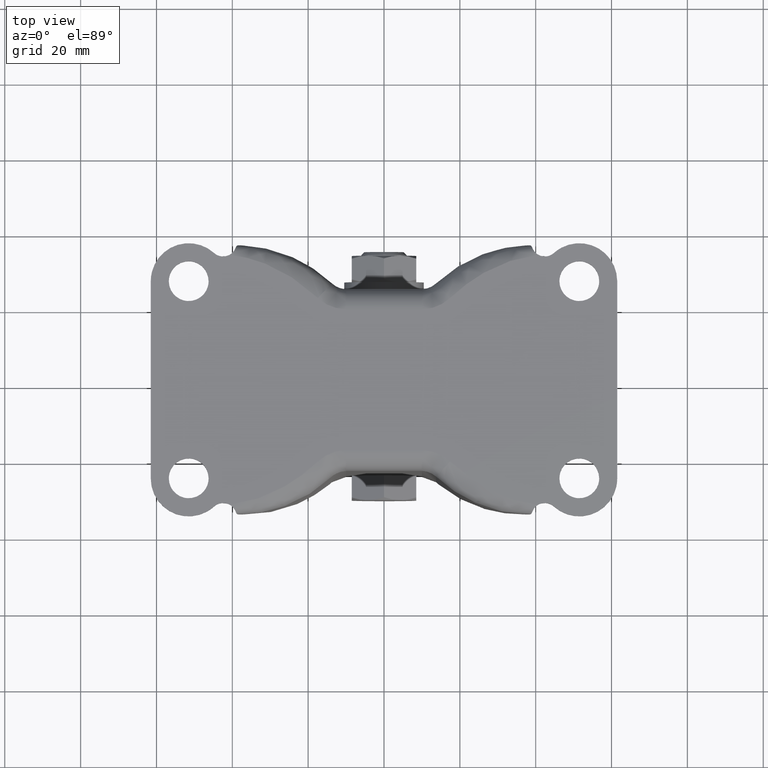
[diagram: clean part render]
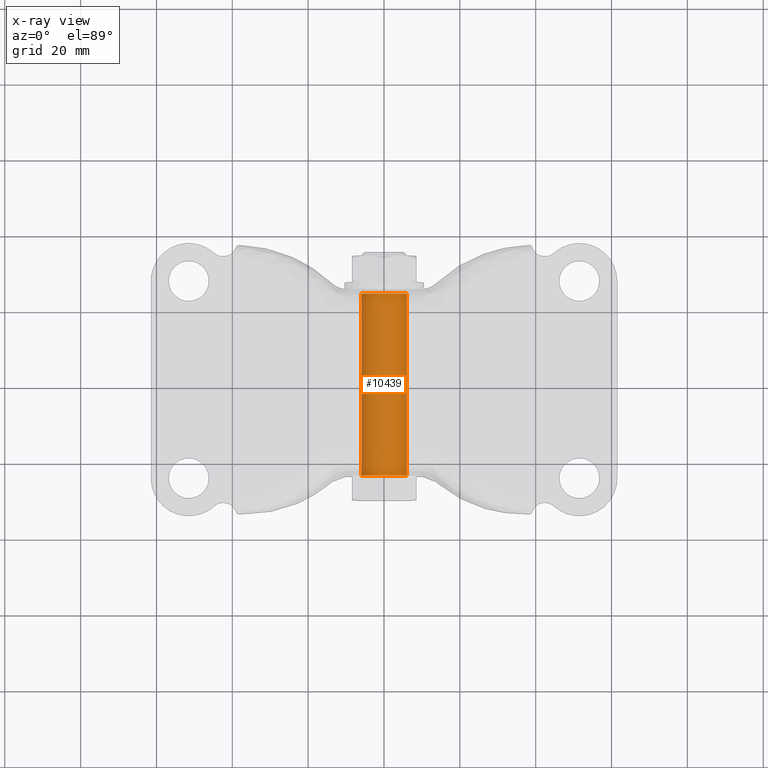
[diagram: x-ray — body ghosted, one internal face saturated and labeled with its STEP entity id]
A machine part, top view, then the same camera in x-ray: the body is ghosted and one INTERNAL B-rep face — a face not visible from any outside direction — is saturated and labeled: STEP entity #10439.
In plain terms, the highlighted face is a freeform B-spline surface patch.
Its self-contained STEP definition (entity closure, byte-faithful):
#10184=CARTESIAN_POINT('',(0.0,-24.0,-74.000000999999997));
#10185=VERTEX_POINT('',#10184);
#10186=CARTESIAN_POINT('',(-5.988807792373561,-24.0,-79.633708823465938));
#10187=VERTEX_POINT('',#10186);
#10188=CARTESIAN_POINT('',(0.0,-24.0,-74.000000999999997));
#10189=CARTESIAN_POINT('',(-5.644235460375473,-23.999999999999996,-74.000001000000026));
#10190=CARTESIAN_POINT('',(-5.988807792373561,-24.000000000000004,-79.633708823465952));
#10198=(BOUNDED_CURVE()B_SPLINE_CURVE(2,(#10188,#10189,#10190),.UNSPECIFIED.,.F.,.U.)B_SPLINE_CURVE_WITH_KNOTS((3,3),(0.500000000000000,0.739332962231208),.UNSPECIFIED.)CURVE()GEOMETRIC_REPRESENTATION_ITEM()RATIONAL_B_SPLINE_CURVE((1.0,0.719603993295772,0.976072041650141))REPRESENTATION_ITEM(''));
#10199=EDGE_CURVE('',#10185,#10187,#10198,.T.);
#10218=CARTESIAN_POINT('',(5.988807792373561,-24.0,-80.366291176534062));
#10219=VERTEX_POINT('',#10218);
#10233=CARTESIAN_POINT('',(5.988807792373561,-24.0,-80.366291176534062));
#10234=CARTESIAN_POINT('',(5.999999000000000,-24.0,-80.183316549426024));
#10235=CARTESIAN_POINT('',(5.999999000000000,-24.0,-80.0));
#10236=CARTESIAN_POINT('',(5.999998999999999,-23.999999999999996,-74.000001000000012));
#10237=CARTESIAN_POINT('',(0.0,-24.0,-74.000000999999997));
#10245=(BOUNDED_CURVE()B_SPLINE_CURVE(2,(#10233,#10234,#10235,#10236,#10237),.UNSPECIFIED.,.F.,.U.)B_SPLINE_CURVE_WITH_KNOTS((3,2,3),(0.239332962231208,0.250000000000000,0.500000000000000),.UNSPECIFIED.)CURVE()GEOMETRIC_REPRESENTATION_ITEM()RATIONAL_B_SPLINE_CURVE((0.976072041650140,0.987502787890775,1.0,0.707106781186548,1.0))REPRESENTATION_ITEM(''));
#10246=EDGE_CURVE('',#10219,#10185,#10245,.T.);
#10373=CARTESIAN_POINT('',(5.988807792396402,25.200000000000010,-80.366291176160601));
#10374=CARTESIAN_POINT('',(6.355098968557005,25.200000000000014,-74.377483383764201));
#10375=CARTESIAN_POINT('',(0.366291176160602,25.200000000000010,-74.011192207603600));
#10376=CARTESIAN_POINT('',(-5.622516616235800,25.200000000000014,-73.644901031442998));
#10377=CARTESIAN_POINT('',(-5.988807792396402,25.200000000000010,-79.633708823839399));
#10378=CARTESIAN_POINT('',(5.988807792396402,-25.230000000000000,-80.366291176160601));
#10379=CARTESIAN_POINT('',(6.355098968557005,-25.230000000000004,-74.377483383764201));
#10380=CARTESIAN_POINT('',(0.366291176160602,-25.230000000000000,-74.011192207603600));
#10381=CARTESIAN_POINT('',(-5.622516616235800,-25.230000000000004,-73.644901031442998));
#10382=CARTESIAN_POINT('',(-5.988807792396402,-25.230000000000000,-79.633708823839399));
#10390=(BOUNDED_SURFACE()B_SPLINE_SURFACE(2,1,((#10373,#10378),(#10374,#10379),(#10375,#10380),(#10376,#10381),(#10377,#10382)),.UNSPECIFIED.,.F.,.F.,.U.)B_SPLINE_SURFACE_WITH_KNOTS((3,2,3),(2,2),(0.0,9.941123840100030,19.882247680200059),(0.0,50.430000000000007),.UNSPECIFIED.)GEOMETRIC_REPRESENTATION_ITEM()RATIONAL_B_SPLINE_SURFACE(((1.0,1.0),(0.707106781186548,0.707106781186548),(1.0,1.0),(0.707106781186548,0.707106781186548),(1.0,1.0)))REPRESENTATION_ITEM('')SURFACE());
#10391=ORIENTED_EDGE('',*,*,#10246,.F.);
#10392=CARTESIAN_POINT('',(5.988807792373561,24.0,-80.366291176534062));
#10393=VERTEX_POINT('',#10392);
#10394=CARTESIAN_POINT('',(5.988807792373561,24.0,-80.366291176534062));
#10395=CARTESIAN_POINT('',(5.988807792373561,-24.0,-80.366291176534062));
#10396=QUASI_UNIFORM_CURVE('',1,(#10394,#10395),.UNSPECIFIED.,.F.,.U.);
#10397=EDGE_CURVE('',#10393,#10219,#10396,.T.);
#10398=ORIENTED_EDGE('',*,*,#10397,.F.);
#10399=CARTESIAN_POINT('',(0.0,24.0,-74.000000999999997));
#10400=VERTEX_POINT('',#10399);
#10401=CARTESIAN_POINT('',(5.988807792373561,24.0,-80.366291176534062));
#10402=CARTESIAN_POINT('',(5.999999000000000,24.0,-80.183316549426024));
#10403=CARTESIAN_POINT('',(5.999999000000000,24.0,-80.0));
#10404=CARTESIAN_POINT('',(5.999998999999999,23.999999999999996,-74.000001000000012));
#10405=CARTESIAN_POINT('',(0.0,24.0,-74.000000999999997));
#10413=(BOUNDED_CURVE()B_SPLINE_CURVE(2,(#10401,#10402,#10403,#10404,#10405),.UNSPECIFIED.,.F.,.U.)B_SPLINE_CURVE_WITH_KNOTS((3,2,3),(0.239332962231208,0.250000000000000,0.500000000000000),.UNSPECIFIED.)CURVE()GEOMETRIC_REPRESENTATION_ITEM()RATIONAL_B_SPLINE_CURVE((0.976072041650141,0.987502787890776,1.0,0.707106781186548,1.0))REPRESENTATION_ITEM(''));
#10414=EDGE_CURVE('',#10393,#10400,#10413,.T.);
#10415=ORIENTED_EDGE('',*,*,#10414,.T.);
#10416=CARTESIAN_POINT('',(-5.988807792373560,24.0,-79.633708823465909));
#10417=VERTEX_POINT('',#10416);
#10418=CARTESIAN_POINT('',(0.0,24.0,-74.000000999999997));
#10419=CARTESIAN_POINT('',(-5.644235460375440,24.0,-74.000001000000012));
#10420=CARTESIAN_POINT('',(-5.988807792373559,24.000000000000007,-79.633708823465909));
#10428=(BOUNDED_CURVE()B_SPLINE_CURVE(2,(#10418,#10419,#10420),.UNSPECIFIED.,.F.,.U.)B_SPLINE_CURVE_WITH_KNOTS((3,3),(0.500000000000000,0.739332962231207),.UNSPECIFIED.)CURVE()GEOMETRIC_REPRESENTATION_ITEM()RATIONAL_B_SPLINE_CURVE((1.0,0.719603993295773,0.976072041650139))REPRESENTATION_ITEM(''));
#10429=EDGE_CURVE('',#10400,#10417,#10428,.T.);
#10430=ORIENTED_EDGE('',*,*,#10429,.T.);
#10431=CARTESIAN_POINT('',(-5.988807792373560,24.0,-79.633708823465909));
#10432=CARTESIAN_POINT('',(-5.988807792373561,-24.0,-79.633708823465938));
#10433=QUASI_UNIFORM_CURVE('',1,(#10431,#10432),.UNSPECIFIED.,.F.,.U.);
#10434=EDGE_CURVE('',#10417,#10187,#10433,.T.);
#10435=ORIENTED_EDGE('',*,*,#10434,.T.);
#10436=ORIENTED_EDGE('',*,*,#10199,.F.);
#10437=EDGE_LOOP('',(#10391,#10398,#10415,#10430,#10435,#10436));
#10438=FACE_OUTER_BOUND('',#10437,.T.);
#10439=ADVANCED_FACE('',(#10438),#10390,.T.);